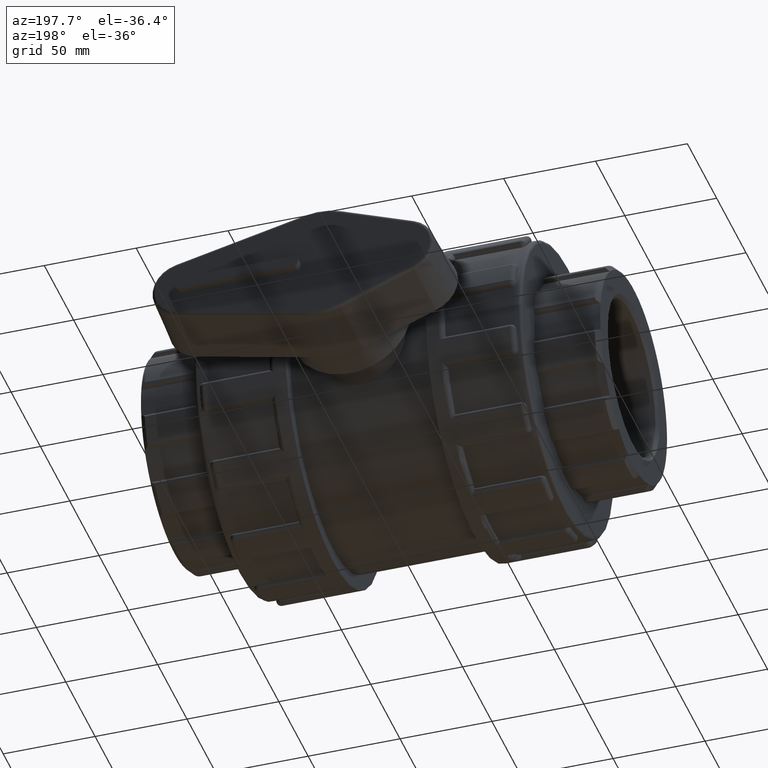
[diagram: clean part render]
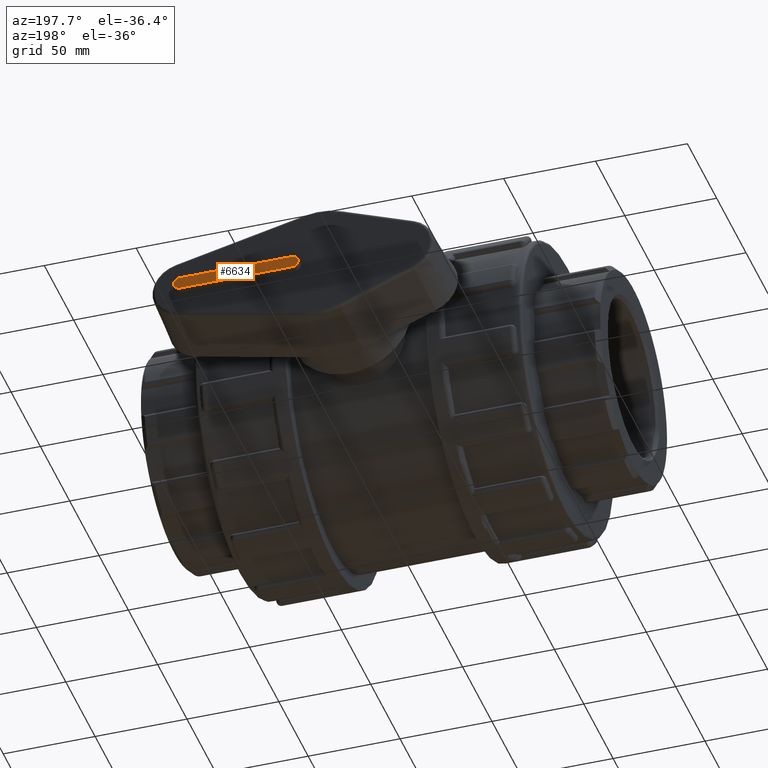
[diagram: same view with one face highlighted and labeled with its STEP entity id]
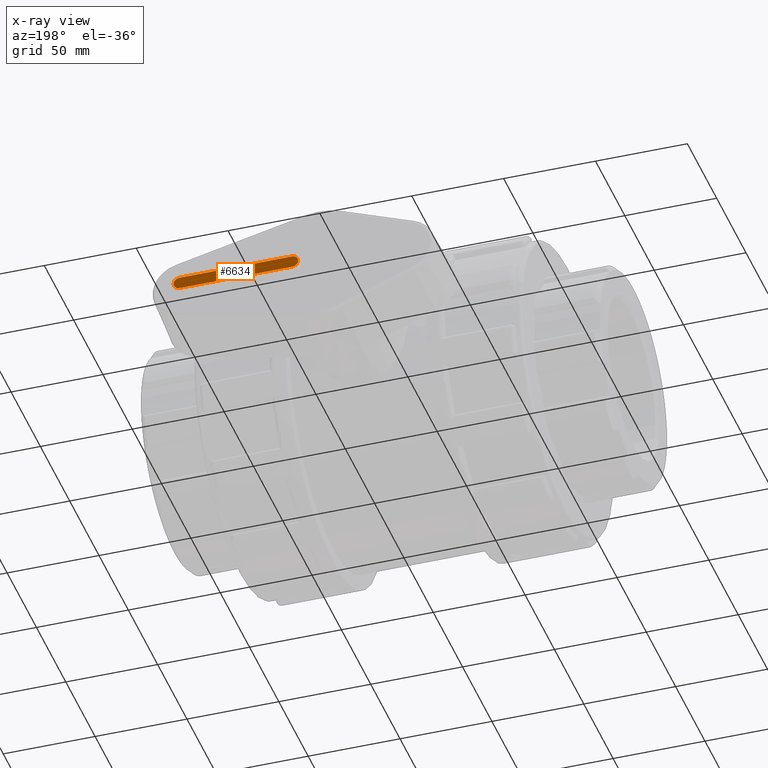
[diagram: x-ray of the same camera — body ghosted, the highlighted face saturated]
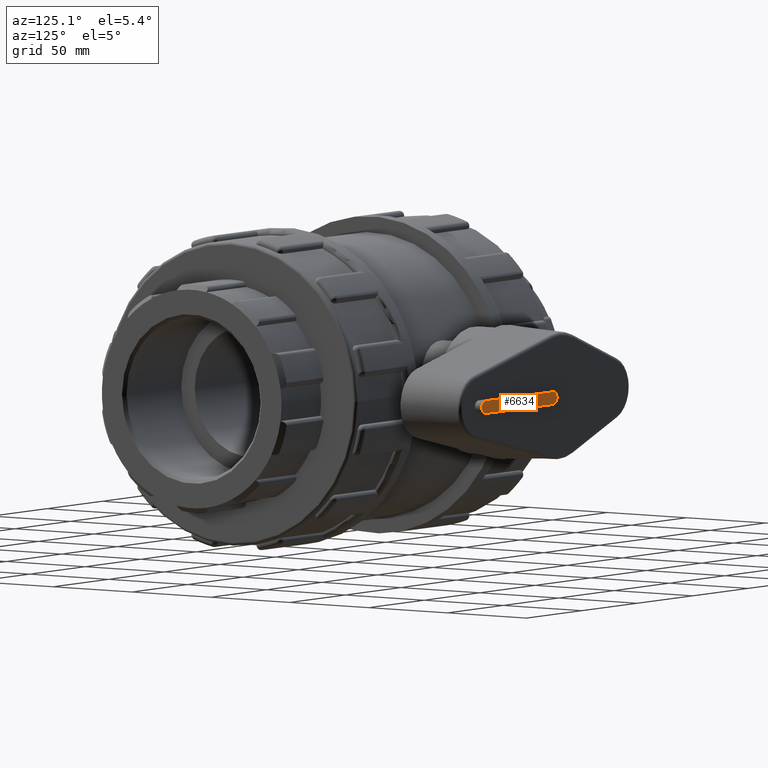
[diagram: same view with one face highlighted and labeled with its STEP entity id]
A machine part, auxiliary view. The second image highlights one B-rep face of the part: STEP entity #6634.
The next image is the same camera in x-ray: the body ghosted, the highlighted face saturated — about 0% of this face is hidden behind the body in this view.
A second angle (auxiliary view) of the same face is appended — the face is thin or edge-on in the first view.
In plain terms, the highlighted planar face has unit normal (-0, 1, 0).
Its self-contained STEP definition (entity closure, byte-faithful):
#231=PLANE('',#7092);
#437=FACE_OUTER_BOUND('',#872,.T.);
#872=EDGE_LOOP('',(#4397,#4398,#4399,#4400));
#1333=LINE('',#10394,#1729);
#1336=LINE('',#10401,#1732);
#1729=VECTOR('',#8099,61.2);
#1732=VECTOR('',#8108,61.2);
#2126=CIRCLE('',#7087,3.3);
#2127=CIRCLE('',#7090,3.3);
#2650=VERTEX_POINT('',#10387);
#2651=VERTEX_POINT('',#10389);
#2652=VERTEX_POINT('',#10393);
#2653=VERTEX_POINT('',#10397);
#3307=EDGE_CURVE('',#2651,#2650,#2126,.T.);
#3309=EDGE_CURVE('',#2652,#2651,#1333,.T.);
#3311=EDGE_CURVE('',#2653,#2652,#2127,.T.);
#3313=EDGE_CURVE('',#2650,#2653,#1336,.T.);
#4397=ORIENTED_EDGE('',*,*,#3313,.T.);
#4398=ORIENTED_EDGE('',*,*,#3311,.T.);
#4399=ORIENTED_EDGE('',*,*,#3309,.T.);
#4400=ORIENTED_EDGE('',*,*,#3307,.T.);
#6634=ADVANCED_FACE('',(#437),#231,.T.);
#7087=AXIS2_PLACEMENT_3D('',#10390,#8094,#8095);
#7090=AXIS2_PLACEMENT_3D('',#10398,#8103,#8104);
#7092=AXIS2_PLACEMENT_3D('',#10402,#8109,#8110);
#8094=DIRECTION('center_axis',(-3.01418015735337E-16,1.,0.));
#8095=DIRECTION('ref_axis',(-2.64063318465228E-17,-7.95934414802772E-33,
1.));
#8099=DIRECTION('',(1.,3.01418015735337E-16,9.97749450235026E-17));
#8103=DIRECTION('center_axis',(-3.01418015735337E-16,1.,0.));
#8104=DIRECTION('ref_axis',(0.,0.,-1.));
#8108=DIRECTION('',(-1.,-3.01418015735337E-16,2.72113486427734E-17));
#8109=DIRECTION('center_axis',(-2.96059473233375E-16,1.,0.));
#8110=DIRECTION('ref_axis',(0.,0.,1.));
#10387=CARTESIAN_POINT('',(74.1,150.38,-3.3));
#10389=CARTESIAN_POINT('',(74.1,150.38,3.30000000000001));
#10390=CARTESIAN_POINT('Origin',(74.1,150.38,0.));
#10393=CARTESIAN_POINT('',(12.8999999999999,150.38,3.3));
#10394=CARTESIAN_POINT('',(12.8999999999999,150.38,3.3));
#10397=CARTESIAN_POINT('',(12.8999999999999,150.38,-3.3));
#10398=CARTESIAN_POINT('Origin',(12.8999999999999,150.38,0.));
#10401=CARTESIAN_POINT('',(74.1,150.38,-3.3));
#10402=CARTESIAN_POINT('Origin',(43.5000149541497,150.38,9.69088723767207E-16));